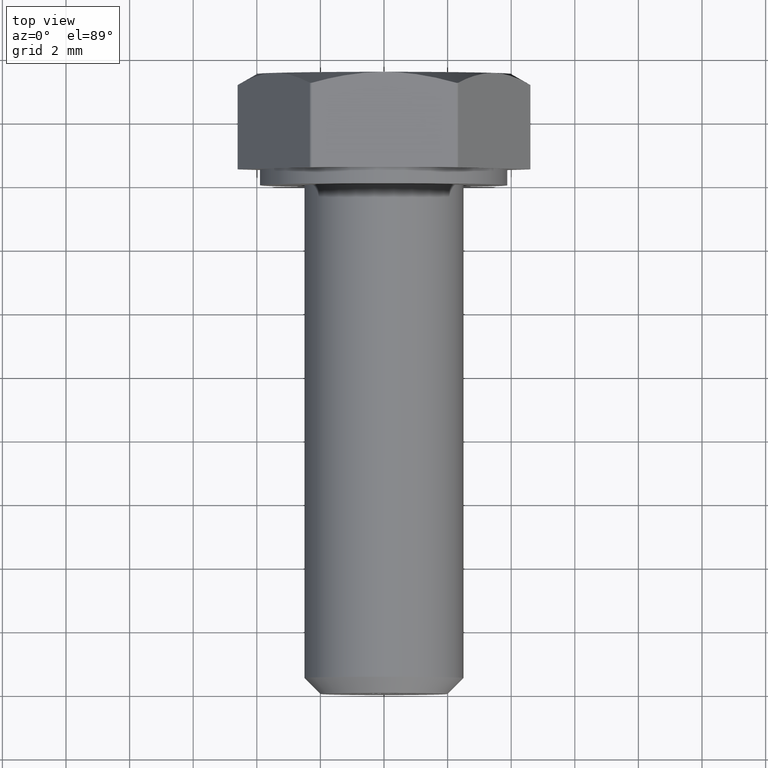
[diagram: clean part render]
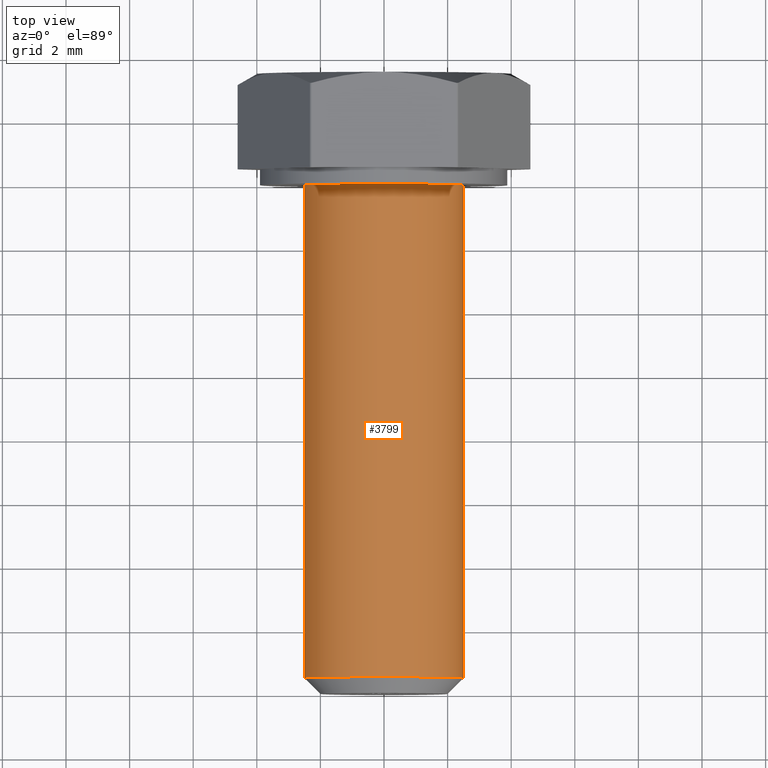
[diagram: same view with one face highlighted and labeled with its STEP entity id]
A machine part, top view. The second image highlights one B-rep face of the part: STEP entity #3799.
In plain terms, the highlighted cylindrical surface (bore or boss wall) has radius 2.5 mm, axis along (-0, 1, -0).
Its self-contained STEP definition (entity closure, byte-faithful):
#931 = CARTESIAN_POINT ( 'NONE',  ( -2.500000000000000444, 0.4999999999999967804, 0.000000000000000000 ) ) ;
#1226 = CARTESIAN_POINT ( 'NONE',  ( -4.448008912761028029E-17, 0.4999999999999970024, 0.000000000000000000 ) ) ;
#3457 = VERTEX_POINT ( 'NONE', #15385 ) ;
#3799 = ADVANCED_FACE ( 'NONE', ( #9897, #15256 ), #15670, .T. ) ;
#4253 = AXIS2_PLACEMENT_3D ( 'NONE', #10564, #7804, #11903 ) ;
#6332 = AXIS2_PLACEMENT_3D ( 'NONE', #1226, #6549, #14348 ) ;
#6488 = EDGE_LOOP ( 'NONE', ( #9310 ) ) ;
#6549 = DIRECTION ( 'NONE',  ( -8.896017825522109060E-17, 1.000000000000000000, -0.000000000000000000 ) ) ;
#6709 = EDGE_LOOP ( 'NONE', ( #12013 ) ) ;
#6743 = EDGE_CURVE ( 'NONE', #3457, #3457, #15585, .T. ) ;
#7804 = DIRECTION ( 'NONE',  ( -8.896017825522085641E-17, 1.000000000000000000, -0.000000000000000000 ) ) ;
#8072 = AXIS2_PLACEMENT_3D ( 'NONE', #13877, #14970, #11492 ) ;
#9310 = ORIENTED_EDGE ( 'NONE', *, *, #6743, .F. ) ;
#9593 = EDGE_CURVE ( 'NONE', #12716, #12716, #15736, .T. ) ;
#9897 = FACE_OUTER_BOUND ( 'NONE', #6709, .T. ) ;
#10564 = CARTESIAN_POINT ( 'NONE',  ( -1.423362852083533703E-15, 16.00000000000000000, 0.000000000000000000 ) ) ;
#11492 = DIRECTION ( 'NONE',  ( -1.000000000000000000, 0.000000000000000000, 0.000000000000000000 ) ) ;
#11903 = DIRECTION ( 'NONE',  ( -1.000000000000000000, 0.000000000000000000, 0.000000000000000000 ) ) ;
#12013 = ORIENTED_EDGE ( 'NONE', *, *, #9593, .T. ) ;
#12716 = VERTEX_POINT ( 'NONE', #931 ) ;
#13877 = CARTESIAN_POINT ( 'NONE',  ( -1.734723475976807094E-15, 19.50000000000000355, 0.000000000000000000 ) ) ;
#14348 = DIRECTION ( 'NONE',  ( -1.000000000000000000, -8.673617379884034239E-17, 0.000000000000000000 ) ) ;
#14970 = DIRECTION ( 'NONE',  ( -8.896017825522085641E-17, 1.000000000000000000, -0.000000000000000000 ) ) ;
#15256 = FACE_OUTER_BOUND ( 'NONE', #6488, .T. ) ;
#15385 = CARTESIAN_POINT ( 'NONE',  ( -2.500000000000002665, 16.00000000000000000, 0.000000000000000000 ) ) ;
#15585 = CIRCLE ( 'NONE', #4253, 2.500000000000001332 ) ;
#15670 = CYLINDRICAL_SURFACE ( 'NONE', #8072, 2.500000000000000444 ) ;
#15736 = CIRCLE ( 'NONE', #6332, 2.500000000000000444 ) ;